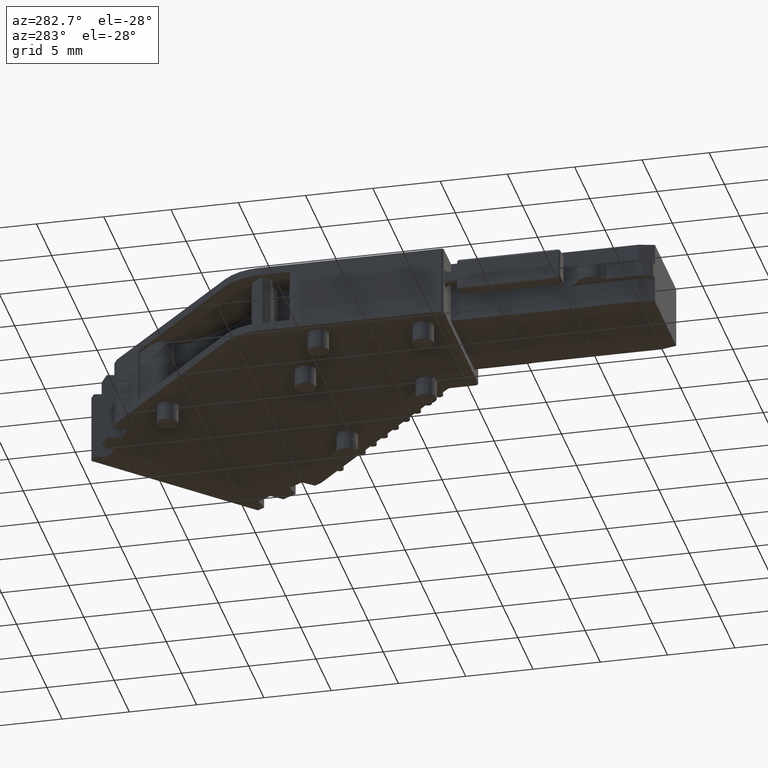
[diagram: clean part render]
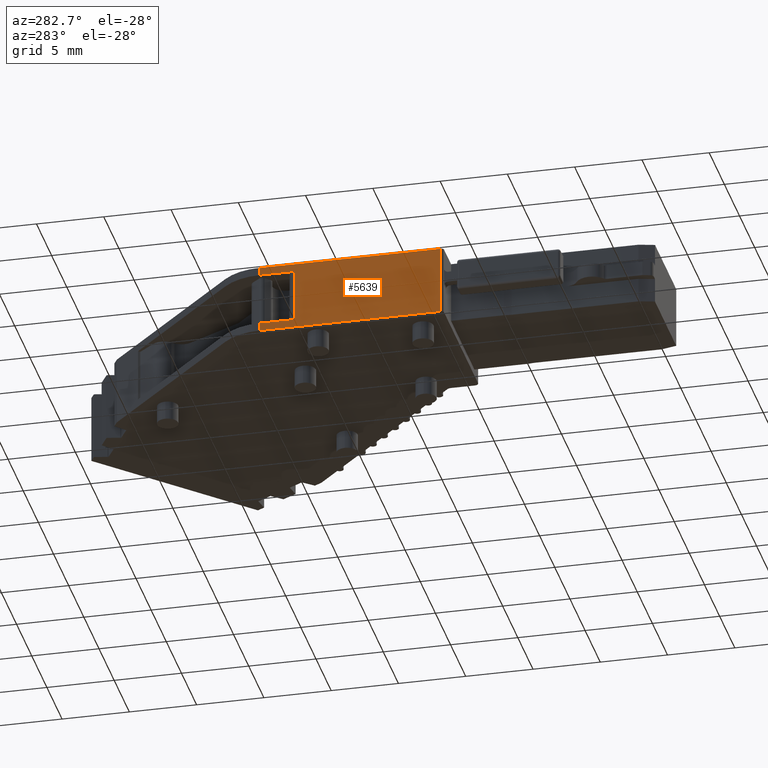
[diagram: same view with one face highlighted and labeled with its STEP entity id]
A machine part, auxiliary view. The second image highlights one B-rep face of the part: STEP entity #5639.
In plain terms, the highlighted planar face has unit normal (-1, -0, 0).
Its self-contained STEP definition (entity closure, byte-faithful):
#73 = LINE ( 'NONE', #5740, #146 ) ;
#146 = VECTOR ( 'NONE', #3301, 1000.000000000000000 ) ;
#185 = CARTESIAN_POINT ( 'NONE',  ( -6.359304324338320500, 28.74249367019647700, 0.0000000000000000000 ) ) ;
#346 = VECTOR ( 'NONE', #5295, 1000.000000000000100 ) ;
#735 = VERTEX_POINT ( 'NONE', #4011 ) ;
#766 = EDGE_CURVE ( 'NONE', #2629, #2416, #3692, .T. ) ;
#815 = DIRECTION ( 'NONE',  ( -0.9999999999999982200, -6.130176387197841400E-008, 0.0000000000000000000 ) ) ;
#864 = DIRECTION ( 'NONE',  ( 6.130176387197841400E-008, -0.9999999999999982200, 0.0000000000000000000 ) ) ;
#902 = VECTOR ( 'NONE', #2726, 1000.000000000000000 ) ;
#959 = ORIENTED_EDGE ( 'NONE', *, *, #4993, .T. ) ;
#1012 = CARTESIAN_POINT ( 'NONE',  ( -6.359303499124215400, 15.28098702660942700, 0.0000000000000000000 ) ) ;
#1116 = VERTEX_POINT ( 'NONE', #5380 ) ;
#1389 = CARTESIAN_POINT ( 'NONE',  ( -6.359303499124221700, 15.28098713097978000, 0.0000000000000000000 ) ) ;
#1406 = CARTESIAN_POINT ( 'NONE',  ( -6.359304324338324900, 28.74249367019647700, 4.549999999999999800 ) ) ;
#1651 = CARTESIAN_POINT ( 'NONE',  ( -6.359304163511069400, 26.11895991162855400, 4.549999999999999800 ) ) ;
#1801 = DIRECTION ( 'NONE',  ( 0.0000000000000000000, 0.0000000000000000000, 1.000000000000000000 ) ) ;
#1896 = FACE_OUTER_BOUND ( 'NONE', #5319, .T. ) ;
#1900 = LINE ( 'NONE', #4595, #902 ) ;
#2359 = VERTEX_POINT ( 'NONE', #1389 ) ;
#2416 = VERTEX_POINT ( 'NONE', #3360 ) ;
#2629 = VERTEX_POINT ( 'NONE', #185 ) ;
#2700 = CARTESIAN_POINT ( 'NONE',  ( -6.359304324338324900, 28.74249367019647700, 0.0000000000000000000 ) ) ;
#2726 = DIRECTION ( 'NONE',  ( 0.0000000000000000000, 0.0000000000000000000, 1.000000000000000000 ) ) ;
#2810 = PLANE ( 'NONE',  #5318 ) ;
#2833 = CARTESIAN_POINT ( 'NONE',  ( -6.359303499124215400, 15.28098702660942700, 0.0000000000000000000 ) ) ;
#2936 = DIRECTION ( 'NONE',  ( -6.130176387197841400E-008, 0.9999999999999982200, -0.0000000000000000000 ) ) ;
#2940 = ORIENTED_EDGE ( 'NONE', *, *, #4456, .T. ) ;
#2949 = CARTESIAN_POINT ( 'NONE',  ( -6.359304163511070300, 26.11895991942596900, 0.0000000000000000000 ) ) ;
#2987 = LINE ( 'NONE', #5877, #6260 ) ;
#3231 = CARTESIAN_POINT ( 'NONE',  ( -6.359304163511069400, 26.11895991162855400, 0.5999999999999998700 ) ) ;
#3301 = DIRECTION ( 'NONE',  ( 0.0000000000000000000, 0.0000000000000000000, 1.000000000000000000 ) ) ;
#3360 = CARTESIAN_POINT ( 'NONE',  ( -6.359304324338320500, 28.74249367019647700, 0.5999999999999998700 ) ) ;
#3527 = CARTESIAN_POINT ( 'NONE',  ( -6.359304204424675300, 0.0000000000000000000, 5.150000000000000400 ) ) ;
#3692 = LINE ( 'NONE', #2700, #5983 ) ;
#3705 = VERTEX_POINT ( 'NONE', #1651 ) ;
#3783 = VERTEX_POINT ( 'NONE', #3231 ) ;
#3860 = EDGE_CURVE ( 'NONE', #3783, #2416, #2987, .T. ) ;
#3909 = DIRECTION ( 'NONE',  ( -0.0000000000000000000, -0.0000000000000000000, -1.000000000000000000 ) ) ;
#3993 = ORIENTED_EDGE ( 'NONE', *, *, #5834, .F. ) ;
#4011 = CARTESIAN_POINT ( 'NONE',  ( -6.359303851774448000, 15.28098713710995700, 5.150000000000000400 ) ) ;
#4157 = LINE ( 'NONE', #1406, #346 ) ;
#4260 = VECTOR ( 'NONE', #3909, 1000.000000000000000 ) ;
#4335 = ORIENTED_EDGE ( 'NONE', *, *, #766, .F. ) ;
#4393 = ORIENTED_EDGE ( 'NONE', *, *, #5521, .F. ) ;
#4456 = EDGE_CURVE ( 'NONE', #3705, #3783, #5653, .T. ) ;
#4467 = LINE ( 'NONE', #3527, #5857 ) ;
#4568 = VECTOR ( 'NONE', #4893, 999.9999999999998900 ) ;
#4595 = CARTESIAN_POINT ( 'NONE',  ( -6.359304324338328500, 28.74249367019647700, 4.549999999999999800 ) ) ;
#4668 = ORIENTED_EDGE ( 'NONE', *, *, #6110, .T. ) ;
#4738 = EDGE_CURVE ( 'NONE', #2629, #2359, #5583, .T. ) ;
#4893 = DIRECTION ( 'NONE',  ( 6.130176387197841400E-008, -0.9999999999999982200, 0.0000000000000000000 ) ) ;
#4993 = EDGE_CURVE ( 'NONE', #2359, #735, #73, .T. ) ;
#4999 = VERTEX_POINT ( 'NONE', #5233 ) ;
#5233 = CARTESIAN_POINT ( 'NONE',  ( -6.359304324338328500, 28.74249367019647700, 5.150000000000000400 ) ) ;
#5295 = DIRECTION ( 'NONE',  ( 6.130176699042956400E-008, -0.9999999999999981100, 0.0000000000000000000 ) ) ;
#5318 = AXIS2_PLACEMENT_3D ( 'NONE', #2833, #815, #864 ) ;
#5319 = EDGE_LOOP ( 'NONE', ( #4335, #6239, #959, #3993, #4393, #4668, #2940, #5774 ) ) ;
#5380 = CARTESIAN_POINT ( 'NONE',  ( -6.359304324338328500, 28.74249367019647700, 4.549999999999999800 ) ) ;
#5521 = EDGE_CURVE ( 'NONE', #1116, #4999, #1900, .T. ) ;
#5583 = LINE ( 'NONE', #1012, #4568 ) ;
#5639 = ADVANCED_FACE ( 'NONE', ( #1896 ), #2810, .T. ) ;
#5653 = LINE ( 'NONE', #2949, #4260 ) ;
#5740 = CARTESIAN_POINT ( 'NONE',  ( -6.359303499124221700, 15.28098713097978000, 0.0000000000000000000 ) ) ;
#5774 = ORIENTED_EDGE ( 'NONE', *, *, #3860, .T. ) ;
#5834 = EDGE_CURVE ( 'NONE', #4999, #735, #4467, .T. ) ;
#5857 = VECTOR ( 'NONE', #6071, 1000.000000000000000 ) ;
#5877 = CARTESIAN_POINT ( 'NONE',  ( -6.359303499124215400, 15.28098702660942700, 0.5999999999999998700 ) ) ;
#5983 = VECTOR ( 'NONE', #1801, 1000.000000000000000 ) ;
#6071 = DIRECTION ( 'NONE',  ( 0.0000000000000000000, -1.000000000000000000, -0.0000000000000000000 ) ) ;
#6110 = EDGE_CURVE ( 'NONE', #1116, #3705, #4157, .T. ) ;
#6239 = ORIENTED_EDGE ( 'NONE', *, *, #4738, .T. ) ;
#6260 = VECTOR ( 'NONE', #2936, 999.9999999999998900 ) ;